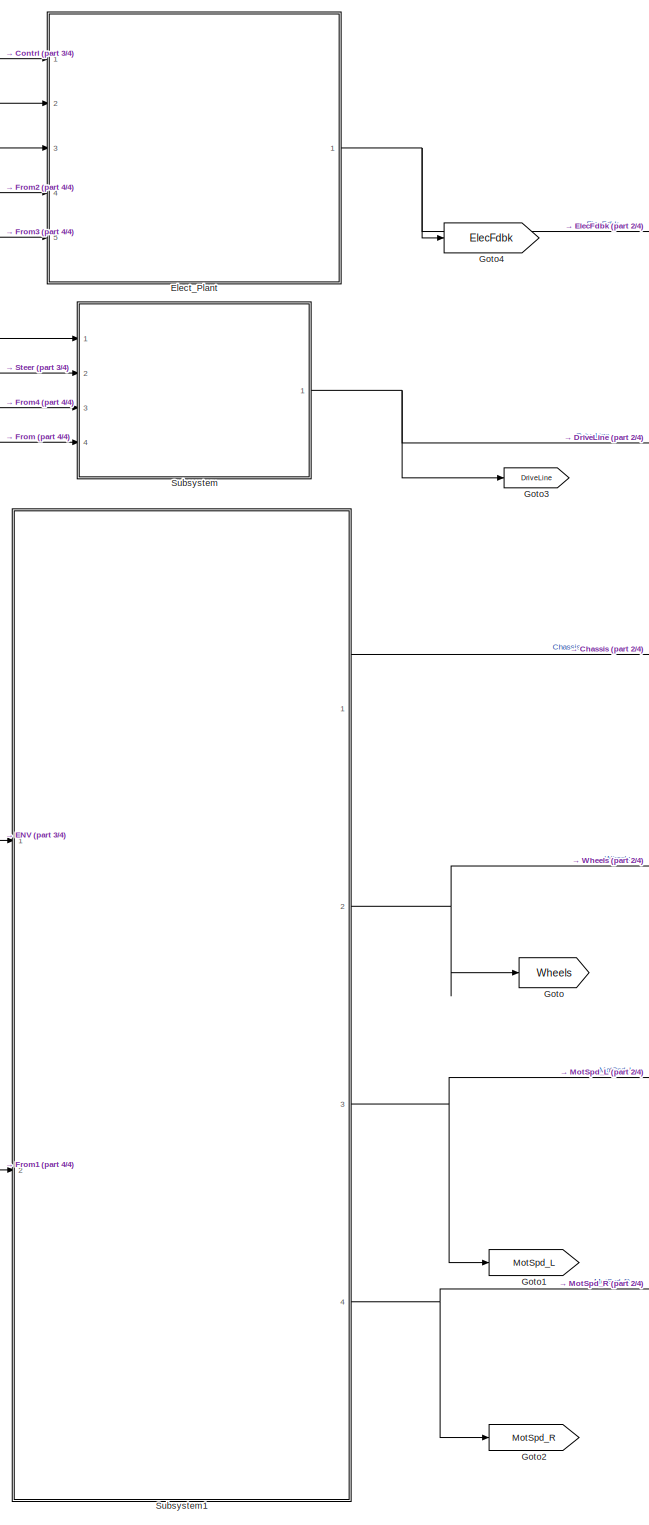
[diagram: root canvas - part 1/4, center side, full height]
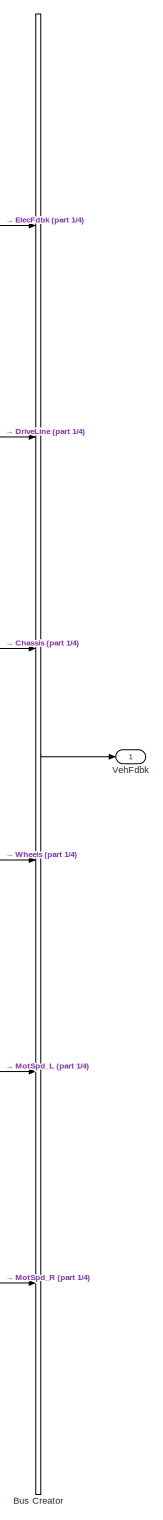
[diagram: root canvas - part 2/4, right side, full height]
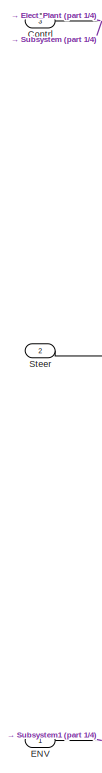
[diagram: root canvas - part 3/4, top left region]
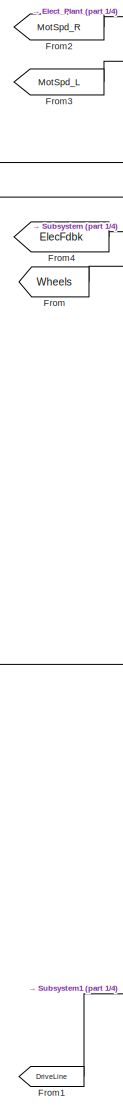
[diagram: root canvas - part 4/4, middle left region]
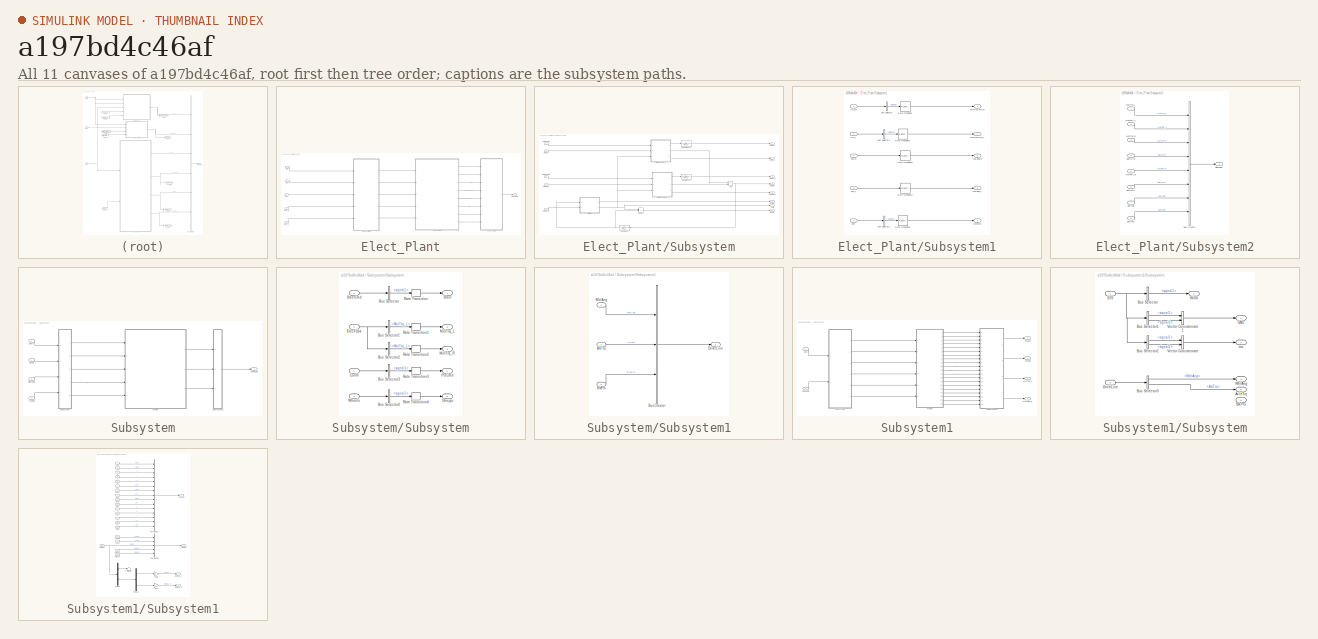
[diagram: thumbnail index - all 11 canvases of the model, root first then tree order]
MODEL slx_a197bd4c46af
KIND model
CONFIG AbsTol = auto
CONFIG EnableMultiTasking = off
CONFIG FixedStep = auto
CONFIG MaxStep = auto
CONFIG MinStep = auto
CONFIG RelTol = 1e-3
CONFIG SampleTimeConstraint = Unconstrained
CONFIG Solver = VariableStepAuto
CONFIG SolverName = VariableStepAuto
CONFIG StartTime = 0.0
CONFIG StopTime = 10.0
WORKSPACE source: mxarray member
WORKSPACE VEH: object (value not decoded)
BLOCK [BusCreator] Bus Creator
  DisplayOption = bar
  InheritFromInputs = on
  Inputs = 6
  Ports = [6, 1]
BLOCK [Inport] Contrl
  Port = 3
BLOCK [Inport] ENV
BLOCK [SubSystem] Elect_Plant
  Ports = [5, 1]
  RequestExecContextInheritance = off
BLOCK [Inport] Elect_Plant/Ctrl_L
  Port = 2
BLOCK [Inport] Elect_Plant/Ctrl_R
BLOCK [Outport] Elect_Plant/ElecFdbk
BLOCK [Inport] Elect_Plant/Env
  Port = 3
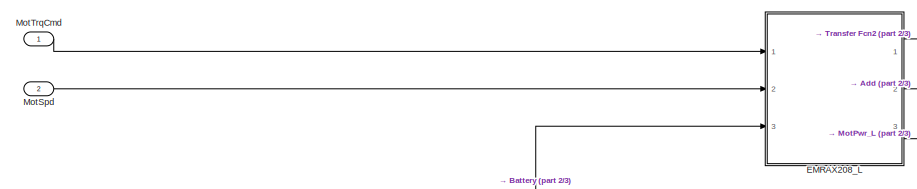
[diagram: Elect_Plant/Subsystem - part 1/3, top left region]
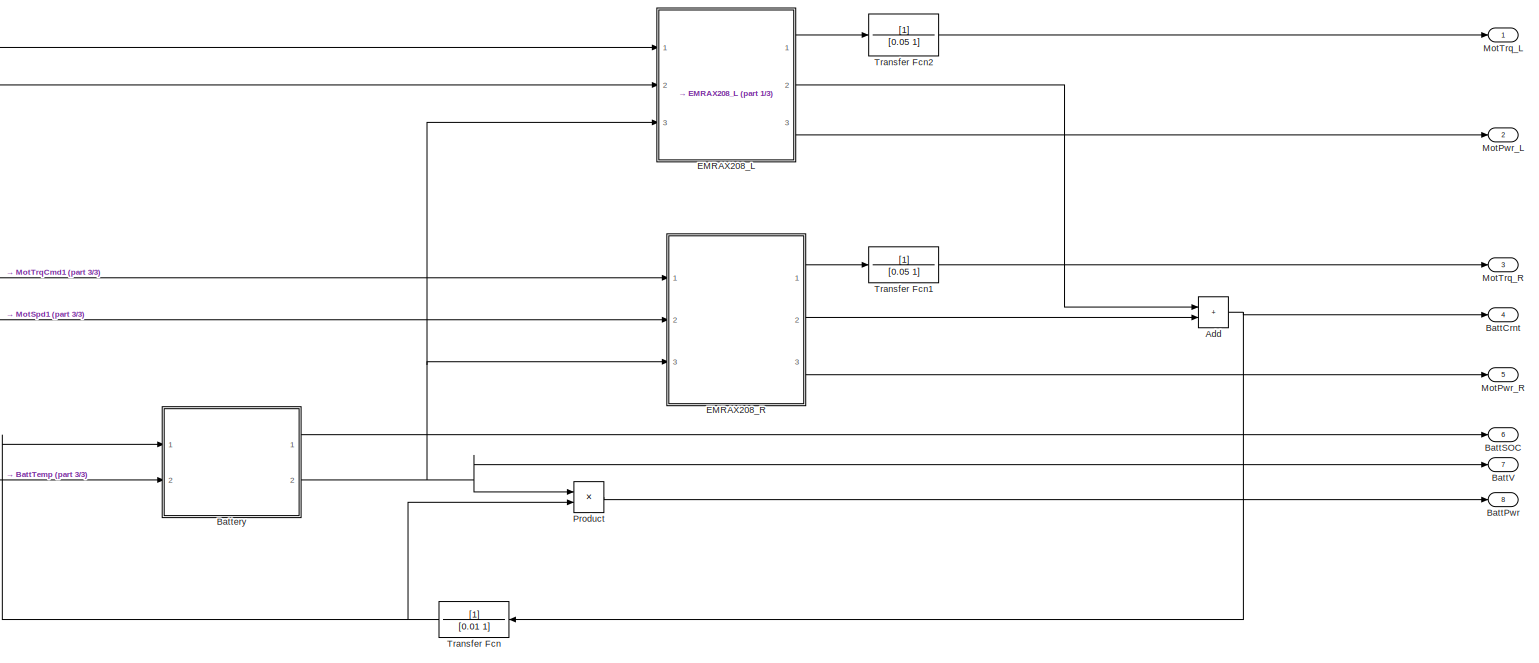
[diagram: Elect_Plant/Subsystem - part 2/3, most of the canvas]
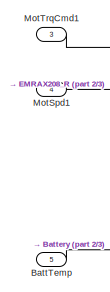
[diagram: Elect_Plant/Subsystem - part 3/3, middle left region]
BLOCK [SubSystem] Elect_Plant/Subsystem
  Ports = [5, 8]
  RequestExecContextInheritance = off
BLOCK [Sum] Elect_Plant/Subsystem/Add
  IconShape = rectangular
  Ports = [2, 1]
BLOCK [Outport] Elect_Plant/Subsystem/BattCrnt
  Port = 4
BLOCK [Outport] Elect_Plant/Subsystem/BattPwr
  Port = 8
BLOCK [Outport] Elect_Plant/Subsystem/BattSOC
  Port = 6
BLOCK [Inport] Elect_Plant/Subsystem/BattTemp
  Port = 5
BLOCK [Outport] Elect_Plant/Subsystem/BattV
  Port = 7
BLOCK [ModelReference] Elect_Plant/Subsystem/Battery
  ModelNameDialog = Battery.slx
  ModelReferenceVersion = 1.1
  Ports = [2, 2]
BLOCK [ModelReference] Elect_Plant/Subsystem/EMRAX208_L
  ModelNameDialog = MotorController_Motor.slx
  ModelReferenceVersion = 1.1
  Ports = [3, 3]
BLOCK [ModelReference] Elect_Plant/Subsystem/EMRAX208_R
  ModelNameDialog = MotorController_Motor.slx
  ModelReferenceVersion = 1.1
  Ports = [3, 3]
BLOCK [Outport] Elect_Plant/Subsystem/MotPwr_L
  Port = 2
BLOCK [Outport] Elect_Plant/Subsystem/MotPwr_R
  Port = 5
BLOCK [Inport] Elect_Plant/Subsystem/MotSpd
  Port = 2
BLOCK [Inport] Elect_Plant/Subsystem/MotSpd1
  Port = 4
BLOCK [Inport] Elect_Plant/Subsystem/MotTrqCmd
BLOCK [Inport] Elect_Plant/Subsystem/MotTrqCmd1
  Port = 3
BLOCK [Outport] Elect_Plant/Subsystem/MotTrq_L
BLOCK [Outport] Elect_Plant/Subsystem/MotTrq_R
  Port = 3
BLOCK [Product] Elect_Plant/Subsystem/Product
  Ports = [2, 1]
BLOCK [TransferFcn] Elect_Plant/Subsystem/Transfer Fcn
  Denominator = [0.01 1]
  NameLocation = top
BLOCK [TransferFcn] Elect_Plant/Subsystem/Transfer Fcn1
  Denominator = [0.05 1]
BLOCK [TransferFcn] Elect_Plant/Subsystem/Transfer Fcn2
  Denominator = [0.05 1]
BLOCK [SubSystem] Elect_Plant/Subsystem1
  Ports = [5, 5]
  RequestExecContextInheritance = off
BLOCK [Outport] Elect_Plant/Subsystem1/AmbTmp
  Port = 3
BLOCK [BusSelector] Elect_Plant/Subsystem1/Bus Selector
  OutputSignals = signal1
  Ports = [1, 1]
BLOCK [BusSelector] Elect_Plant/Subsystem1/Bus Selector1
  OutputSignals = signal1
  Ports = [1, 1]
BLOCK [BusSelector] Elect_Plant/Subsystem1/Bus Selector2
  OutputSignals = signal1
  Ports = [1, 1]
BLOCK [Inport] Elect_Plant/Subsystem1/Ctrl_L
  Port = 2
BLOCK [Inport] Elect_Plant/Subsystem1/Ctrl_R
BLOCK [Inport] Elect_Plant/Subsystem1/Env
  Port = 3
BLOCK [Outport] Elect_Plant/Subsystem1/MotSpd_L
  Port = 5
BLOCK [Outport] Elect_Plant/Subsystem1/MotSpd_R
  Port = 4
BLOCK [Outport] Elect_Plant/Subsystem1/MotTrqCmd_L
  Port = 2
BLOCK [Outport] Elect_Plant/Subsystem1/MotTrqCmd_R
BLOCK [RateTransition] Elect_Plant/Subsystem1/Rate Transition
  Deterministic = off
BLOCK [RateTransition] Elect_Plant/Subsystem1/Rate Transition1
BLOCK [RateTransition] Elect_Plant/Subsystem1/Rate Transition2
BLOCK [RateTransition] Elect_Plant/Subsystem1/Rate Transition3
BLOCK [RateTransition] Elect_Plant/Subsystem1/Rate Transition4
BLOCK [Inport] Elect_Plant/Subsystem1/Veh_L
  Port = 5
BLOCK [Inport] Elect_Plant/Subsystem1/Veh_R
  Port = 4
BLOCK [SubSystem] Elect_Plant/Subsystem2
  Ports = [8, 1]
  RequestExecContextInheritance = off
BLOCK [Inport] Elect_Plant/Subsystem2/BattCrnt
  Port = 4
BLOCK [Inport] Elect_Plant/Subsystem2/BattPwr
  Port = 8
BLOCK [Inport] Elect_Plant/Subsystem2/BattSOC
  Port = 6
BLOCK [Inport] Elect_Plant/Subsystem2/BattVolt
  Port = 7
BLOCK [BusCreator] Elect_Plant/Subsystem2/Bus Creator
  DisplayOption = bar
  InheritFromInputs = on
  Inputs = 8
  Ports = [8, 1]
BLOCK [Outport] Elect_Plant/Subsystem2/ElecFdbk
BLOCK [Inport] Elect_Plant/Subsystem2/MotPwr_L
  Port = 2
BLOCK [Inport] Elect_Plant/Subsystem2/MotPwr_R
  Port = 5
BLOCK [Inport] Elect_Plant/Subsystem2/MotTrq_L
BLOCK [Inport] Elect_Plant/Subsystem2/MotTrq_R
  Port = 3
BLOCK [Inport] Elect_Plant/Veh_L
  Port = 5
BLOCK [Inport] Elect_Plant/Veh_R
  Port = 4
BLOCK [From] From
  GotoTag = Wheels
BLOCK [From] From1
  GotoTag = DriveLine
BLOCK [From] From2
  GotoTag = MotSpd_R
BLOCK [From] From3
  GotoTag = MotSpd_L
BLOCK [From] From4
  GotoTag = ElecFdbk
BLOCK [Goto] Goto
  GotoTag = Wheels
BLOCK [Goto] Goto1
  GotoTag = MotSpd_L
BLOCK [Goto] Goto2
  GotoTag = MotSpd_R
BLOCK [Goto] Goto3
  GotoTag = DriveLine
BLOCK [Goto] Goto4
  GotoTag = ElecFdbk
BLOCK [Inport] Steer
  Port = 2
BLOCK [SubSystem] Subsystem
  Ports = [4, 1]
  RequestExecContextInheritance = off
BLOCK [Inport] Subsystem/Contrl
BLOCK [Outport] Subsystem/DriveLine
BLOCK [Inport] Subsystem/ElecFdbk
  Port = 3
BLOCK [ModelReference] Subsystem/Model
  ModelNameDialog = Driveline.slx
  ModelReferenceVersion = 1.211
  Ports = [5, 3]
BLOCK [Inport] Subsystem/Steer
  Port = 2
BLOCK [SubSystem] Subsystem/Subsystem
  Ports = [4, 5]
  RequestExecContextInheritance = off
BLOCK [BusSelector] Subsystem/Subsystem/Bus Selector
  OutputSignals = signal1
  Ports = [1, 1]
BLOCK [BusSelector] Subsystem/Subsystem/Bus Selector1
  OutputSignals = MotTrq_L
  Ports = [1, 1]
BLOCK [BusSelector] Subsystem/Subsystem/Bus Selector2
  OutputSignals = MotTrq_L
  Ports = [1, 1]
BLOCK [BusSelector] Subsystem/Subsystem/Bus Selector3
  OutputSignals = signal1
  Ports = [1, 1]
BLOCK [BusSelector] Subsystem/Subsystem/Bus Selector4
  OutputSignals = signal1
  Ports = [1, 1]
BLOCK [Inport] Subsystem/Subsystem/Contrl
BLOCK [Inport] Subsystem/Subsystem/ElecFdbk
  Port = 3
BLOCK [Outport] Subsystem/Subsystem/MotTrq_L
  Port = 2
BLOCK [Outport] Subsystem/Subsystem/MotTrq_R
  Port = 3
BLOCK [Outport] Subsystem/Subsystem/Omega
  Port = 5
BLOCK [Outport] Subsystem/Subsystem/PrsCmd
  Port = 4
BLOCK [RateTransition] Subsystem/Subsystem/Rate Transition
BLOCK [RateTransition] Subsystem/Subsystem/Rate Transition1
BLOCK [RateTransition] Subsystem/Subsystem/Rate Transition2
BLOCK [RateTransition] Subsystem/Subsystem/Rate Transition3
BLOCK [RateTransition] Subsystem/Subsystem/Rate Transition4
BLOCK [Outport] Subsystem/Subsystem/Steer
BLOCK [Inport] Subsystem/Subsystem/SteerCmd
  Port = 2
BLOCK [Inport] Subsystem/Subsystem/Wheels
  Port = 4
BLOCK [SubSystem] Subsystem/Subsystem1
  Ports = [3, 1]
  RequestExecContextInheritance = off
BLOCK [Inport] Subsystem/Subsystem1/AxlTrq
  Port = 2
BLOCK [Inport] Subsystem/Subsystem1/BrkPrs
  Port = 3
BLOCK [BusCreator] Subsystem/Subsystem1/Bus Creator
  DisplayOption = bar
  InheritFromInputs = on
  Inputs = 3
  Ports = [3, 1]
BLOCK [Outport] Subsystem/Subsystem1/DriverLine
BLOCK [Inport] Subsystem/Subsystem1/WhlAng
BLOCK [Inport] Subsystem/Wheels
  Port = 4
BLOCK [SubSystem] Subsystem1
  Ports = [2, 4]
  RequestExecContextInheritance = off
BLOCK [Outport] Subsystem1/Chassis
BLOCK [Inport] Subsystem1/DriveLine
  Port = 2
BLOCK [Inport] Subsystem1/Env
BLOCK [ModelReference] Subsystem1/Model
  ModelNameDialog = PassVeh7DOF.slx
  ModelReferenceVersion = 1.128
  Ports = [6, 20]
BLOCK [Outport] Subsystem1/MotSpd_L
  Port = 3
BLOCK [Outport] Subsystem1/MotSpd_R
  Port = 4
BLOCK [SubSystem] Subsystem1/Subsystem
  Ports = [2, 6]
  RequestExecContextInheritance = off
BLOCK [Outport] Subsystem1/Subsystem/AxleTrq
  Port = 5
BLOCK [Outport] Subsystem1/Subsystem/BrkPrs
  Port = 6
BLOCK [BusSelector] Subsystem1/Subsystem/Bus Selector
  OutputSignals = signal1
  Ports = [1, 1]
BLOCK [BusSelector] Subsystem1/Subsystem/Bus Selector1
  OutputSignals = signal1,signal2
  Ports = [1, 2]
BLOCK [BusSelector] Subsystem1/Subsystem/Bus Selector2
  OutputSignals = signal1,signal2
  Ports = [1, 2]
BLOCK [BusSelector] Subsystem1/Subsystem/Bus Selector3
  OutputSignals = WhlAng,AxlTrq
  Ports = [1, 2]
BLOCK [Inport] Subsystem1/Subsystem/DriveLine
  Port = 2
BLOCK [Inport] Subsystem1/Subsystem/Env
BLOCK [Outport] Subsystem1/Subsystem/GND
  Port = 2
BLOCK [Concatenate] Subsystem1/Subsystem/Vector Concatenate
  Ports = [2, 1]
BLOCK [Concatenate] Subsystem1/Subsystem/Vector Concatenate1
  Ports = [2, 1]
BLOCK [Outport] Subsystem1/Subsystem/WhlAng
  Port = 4
BLOCK [Outport] Subsystem1/Subsystem/Wind
BLOCK [Outport] Subsystem1/Subsystem/mu
  Port = 3
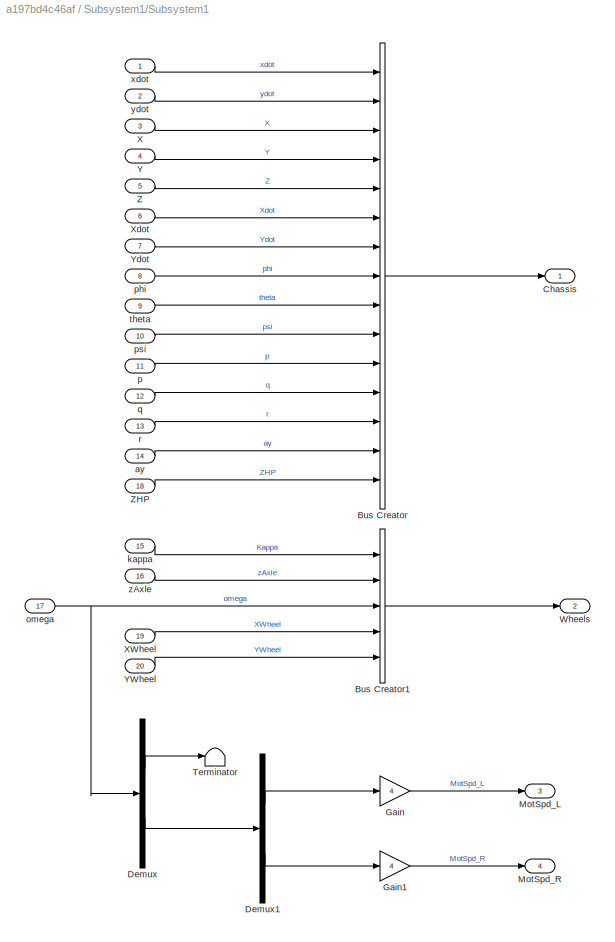
BLOCK [SubSystem] Subsystem1/Subsystem1
  Ports = [20, 4]
  RequestExecContextInheritance = off
BLOCK [BusCreator] Subsystem1/Subsystem1/Bus Creator
  DisplayOption = bar
  InheritFromInputs = on
  Inputs = 15
  Ports = [15, 1]
BLOCK [BusCreator] Subsystem1/Subsystem1/Bus Creator1
  DisplayOption = bar
  InheritFromInputs = on
  Inputs = 5
  Ports = [5, 1]
BLOCK [Outport] Subsystem1/Subsystem1/Chassis
BLOCK [Demux] Subsystem1/Subsystem1/Demux
  Outputs = 2
  Ports = [1, 2]
BLOCK [Demux] Subsystem1/Subsystem1/Demux1
  Outputs = 2
  Ports = [1, 2]
BLOCK [Gain] Subsystem1/Subsystem1/Gain
  Gain = 4
BLOCK [Gain] Subsystem1/Subsystem1/Gain1
  Gain = 4
BLOCK [Outport] Subsystem1/Subsystem1/MotSpd_L
  Port = 3
BLOCK [Outport] Subsystem1/Subsystem1/MotSpd_R
  Port = 4
BLOCK [Terminator] Subsystem1/Subsystem1/Terminator
BLOCK [Outport] Subsystem1/Subsystem1/Wheels
  Port = 2
BLOCK [Inport] Subsystem1/Subsystem1/X
  Port = 3
BLOCK [Inport] Subsystem1/Subsystem1/XWheel
  Port = 19
BLOCK [Inport] Subsystem1/Subsystem1/Xdot
  Port = 6
BLOCK [Inport] Subsystem1/Subsystem1/Y
  Port = 4
BLOCK [Inport] Subsystem1/Subsystem1/YWheel
  Port = 20
BLOCK [Inport] Subsystem1/Subsystem1/Ydot
  Port = 7
BLOCK [Inport] Subsystem1/Subsystem1/Z
  Port = 5
BLOCK [Inport] Subsystem1/Subsystem1/ZHP
  Port = 18
BLOCK [Inport] Subsystem1/Subsystem1/ay
  Port = 14
BLOCK [Inport] Subsystem1/Subsystem1/kappa
  Port = 15
BLOCK [Inport] Subsystem1/Subsystem1/omega
  Port = 17
BLOCK [Inport] Subsystem1/Subsystem1/p
  Port = 11
BLOCK [Inport] Subsystem1/Subsystem1/phi
  Port = 8
BLOCK [Inport] Subsystem1/Subsystem1/psi
  Port = 10
BLOCK [Inport] Subsystem1/Subsystem1/q
  Port = 12
BLOCK [Inport] Subsystem1/Subsystem1/r
  Port = 13
BLOCK [Inport] Subsystem1/Subsystem1/theta
  Port = 9
BLOCK [Inport] Subsystem1/Subsystem1/xdot
BLOCK [Inport] Subsystem1/Subsystem1/ydot
  Port = 2
BLOCK [Inport] Subsystem1/Subsystem1/zAxle
  Port = 16
BLOCK [Outport] Subsystem1/Wheels
  Port = 2
BLOCK [Outport] VehFdbk
  SignalName = VehFdbk
LINE Bus Creator:1 -> VehFdbk:1
NET Contrl:1 -> Elect_Plant:1, Elect_Plant:2, Subsystem:1
NET ENV:1 -> Elect_Plant:3, Subsystem1:1
LINE Elect_Plant/Ctrl_L:1 -> Elect_Plant/Subsystem1:2
LINE Elect_Plant/Ctrl_R:1 -> Elect_Plant/Subsystem1:1
LINE Elect_Plant/Env:1 -> Elect_Plant/Subsystem1:3
NET Elect_Plant/Subsystem/Add:1 -> Elect_Plant/Subsystem/BattCrnt:1, Elect_Plant/Subsystem/Transfer Fcn:1
LINE Elect_Plant/Subsystem/BattTemp:1 -> Elect_Plant/Subsystem/Battery:2
LINE Elect_Plant/Subsystem/Battery:1 -> Elect_Plant/Subsystem/BattSOC:1
NET Elect_Plant/Subsystem/Battery:2 -> Elect_Plant/Subsystem/BattV:1, Elect_Plant/Subsystem/EMRAX208_L:3, Elect_Plant/Subsystem/EMRAX208_R:3, Elect_Plant/Subsystem/Product:1
LINE Elect_Plant/Subsystem/EMRAX208_L:1 -> Elect_Plant/Subsystem/Transfer Fcn2:1
LINE Elect_Plant/Subsystem/EMRAX208_L:2 -> Elect_Plant/Subsystem/Add:1
LINE Elect_Plant/Subsystem/EMRAX208_L:3 -> Elect_Plant/Subsystem/MotPwr_L:1
LINE Elect_Plant/Subsystem/EMRAX208_R:1 -> Elect_Plant/Subsystem/Transfer Fcn1:1
LINE Elect_Plant/Subsystem/EMRAX208_R:2 -> Elect_Plant/Subsystem/Add:2
LINE Elect_Plant/Subsystem/EMRAX208_R:3 -> Elect_Plant/Subsystem/MotPwr_R:1
LINE Elect_Plant/Subsystem/MotSpd1:1 -> Elect_Plant/Subsystem/EMRAX208_R:2
LINE Elect_Plant/Subsystem/MotSpd:1 -> Elect_Plant/Subsystem/EMRAX208_L:2
LINE Elect_Plant/Subsystem/MotTrqCmd1:1 -> Elect_Plant/Subsystem/EMRAX208_R:1
LINE Elect_Plant/Subsystem/MotTrqCmd:1 -> Elect_Plant/Subsystem/EMRAX208_L:1
LINE Elect_Plant/Subsystem/Product:1 -> Elect_Plant/Subsystem/BattPwr:1
LINE Elect_Plant/Subsystem/Transfer Fcn1:1 -> Elect_Plant/Subsystem/MotTrq_R:1
LINE Elect_Plant/Subsystem/Transfer Fcn2:1 -> Elect_Plant/Subsystem/MotTrq_L:1
NET Elect_Plant/Subsystem/Transfer Fcn:1 -> Elect_Plant/Subsystem/Battery:1, Elect_Plant/Subsystem/Product:2
LINE Elect_Plant/Subsystem1/Bus Selector1:1 -> Elect_Plant/Subsystem1/Rate Transition1:1
LINE Elect_Plant/Subsystem1/Bus Selector2:1 -> Elect_Plant/Subsystem1/Rate Transition2:1
LINE Elect_Plant/Subsystem1/Bus Selector:1 -> Elect_Plant/Subsystem1/Rate Transition:1
LINE Elect_Plant/Subsystem1/Ctrl_L:1 -> Elect_Plant/Subsystem1/Bus Selector1:1
LINE Elect_Plant/Subsystem1/Ctrl_R:1 -> Elect_Plant/Subsystem1/Bus Selector:1
LINE Elect_Plant/Subsystem1/Env:1 -> Elect_Plant/Subsystem1/Bus Selector2:1
LINE Elect_Plant/Subsystem1/Rate Transition1:1 -> Elect_Plant/Subsystem1/MotTrqCmd_L:1
LINE Elect_Plant/Subsystem1/Rate Transition2:1 -> Elect_Plant/Subsystem1/AmbTmp:1
LINE Elect_Plant/Subsystem1/Rate Transition3:1 -> Elect_Plant/Subsystem1/MotSpd_R:1
LINE Elect_Plant/Subsystem1/Rate Transition4:1 -> Elect_Plant/Subsystem1/MotSpd_L:1
LINE Elect_Plant/Subsystem1/Rate Transition:1 -> Elect_Plant/Subsystem1/MotTrqCmd_R:1
LINE Elect_Plant/Subsystem1/Veh_L:1 -> Elect_Plant/Subsystem1/Rate Transition4:1
LINE Elect_Plant/Subsystem1/Veh_R:1 -> Elect_Plant/Subsystem1/Rate Transition3:1
LINE Elect_Plant/Subsystem1:1 -> Elect_Plant/Subsystem:1
LINE Elect_Plant/Subsystem1:2 -> Elect_Plant/Subsystem:2
LINE Elect_Plant/Subsystem1:3 -> Elect_Plant/Subsystem:3
LINE Elect_Plant/Subsystem1:4 -> Elect_Plant/Subsystem:4
LINE Elect_Plant/Subsystem1:5 -> Elect_Plant/Subsystem:5
LINE Elect_Plant/Subsystem2/BattCrnt:1 -> Elect_Plant/Subsystem2/Bus Creator:4
LINE Elect_Plant/Subsystem2/BattPwr:1 -> Elect_Plant/Subsystem2/Bus Creator:8
LINE Elect_Plant/Subsystem2/BattSOC:1 -> Elect_Plant/Subsystem2/Bus Creator:6
LINE Elect_Plant/Subsystem2/BattVolt:1 -> Elect_Plant/Subsystem2/Bus Creator:7
LINE Elect_Plant/Subsystem2/Bus Creator:1 -> Elect_Plant/Subsystem2/ElecFdbk:1
LINE Elect_Plant/Subsystem2/MotPwr_L:1 -> Elect_Plant/Subsystem2/Bus Creator:2
LINE Elect_Plant/Subsystem2/MotPwr_R:1 -> Elect_Plant/Subsystem2/Bus Creator:5
LINE Elect_Plant/Subsystem2/MotTrq_L:1 -> Elect_Plant/Subsystem2/Bus Creator:1
LINE Elect_Plant/Subsystem2/MotTrq_R:1 -> Elect_Plant/Subsystem2/Bus Creator:3
LINE Elect_Plant/Subsystem2:1 -> Elect_Plant/ElecFdbk:1
LINE Elect_Plant/Subsystem:1 -> Elect_Plant/Subsystem2:1
LINE Elect_Plant/Subsystem:2 -> Elect_Plant/Subsystem2:2
LINE Elect_Plant/Subsystem:3 -> Elect_Plant/Subsystem2:3
LINE Elect_Plant/Subsystem:4 -> Elect_Plant/Subsystem2:4
LINE Elect_Plant/Subsystem:5 -> Elect_Plant/Subsystem2:5
LINE Elect_Plant/Subsystem:6 -> Elect_Plant/Subsystem2:6
LINE Elect_Plant/Subsystem:7 -> Elect_Plant/Subsystem2:7
LINE Elect_Plant/Subsystem:8 -> Elect_Plant/Subsystem2:8
LINE Elect_Plant/Veh_L:1 -> Elect_Plant/Subsystem1:5
LINE Elect_Plant/Veh_R:1 -> Elect_Plant/Subsystem1:4
NET Elect_Plant:1 -> Bus Creator:1, Goto4:1
LINE From1:1 -> Subsystem1:2
LINE From2:1 -> Elect_Plant:4
LINE From3:1 -> Elect_Plant:5
LINE From4:1 -> Subsystem:3
LINE From:1 -> Subsystem:4
LINE Steer:1 -> Subsystem:2
LINE Subsystem/Contrl:1 -> Subsystem/Subsystem:1
LINE Subsystem/ElecFdbk:1 -> Subsystem/Subsystem:3
LINE Subsystem/Model:1 -> Subsystem/Subsystem1:1
LINE Subsystem/Model:2 -> Subsystem/Subsystem1:2
LINE Subsystem/Model:3 -> Subsystem/Subsystem1:3
LINE Subsystem/Steer:1 -> Subsystem/Subsystem:2
LINE Subsystem/Subsystem/Bus Selector1:1 -> Subsystem/Subsystem/Rate Transition1:1
LINE Subsystem/Subsystem/Bus Selector2:1 -> Subsystem/Subsystem/Rate Transition2:1
LINE Subsystem/Subsystem/Bus Selector3:1 -> Subsystem/Subsystem/Rate Transition3:1
LINE Subsystem/Subsystem/Bus Selector4:1 -> Subsystem/Subsystem/Rate Transition4:1
LINE Subsystem/Subsystem/Bus Selector:1 -> Subsystem/Subsystem/Rate Transition:1
LINE Subsystem/Subsystem/Contrl:1 -> Subsystem/Subsystem/Bus Selector3:1
NET Subsystem/Subsystem/ElecFdbk:1 -> Subsystem/Subsystem/Bus Selector1:1, Subsystem/Subsystem/Bus Selector2:1
LINE Subsystem/Subsystem/Rate Transition1:1 -> Subsystem/Subsystem/MotTrq_L:1
LINE Subsystem/Subsystem/Rate Transition2:1 -> Subsystem/Subsystem/MotTrq_R:1
LINE Subsystem/Subsystem/Rate Transition3:1 -> Subsystem/Subsystem/PrsCmd:1
LINE Subsystem/Subsystem/Rate Transition4:1 -> Subsystem/Subsystem/Omega:1
LINE Subsystem/Subsystem/Rate Transition:1 -> Subsystem/Subsystem/Steer:1
LINE Subsystem/Subsystem/SteerCmd:1 -> Subsystem/Subsystem/Bus Selector:1
LINE Subsystem/Subsystem/Wheels:1 -> Subsystem/Subsystem/Bus Selector4:1
LINE Subsystem/Subsystem1/AxlTrq:1 -> Subsystem/Subsystem1/Bus Creator:2
LINE Subsystem/Subsystem1/BrkPrs:1 -> Subsystem/Subsystem1/Bus Creator:3
LINE Subsystem/Subsystem1/Bus Creator:1 -> Subsystem/Subsystem1/DriverLine:1
LINE Subsystem/Subsystem1/WhlAng:1 -> Subsystem/Subsystem1/Bus Creator:1
LINE Subsystem/Subsystem1:1 -> Subsystem/DriveLine:1
LINE Subsystem/Subsystem:1 -> Subsystem/Model:1
LINE Subsystem/Subsystem:2 -> Subsystem/Model:2
LINE Subsystem/Subsystem:3 -> Subsystem/Model:3
LINE Subsystem/Subsystem:4 -> Subsystem/Model:4
LINE Subsystem/Subsystem:5 -> Subsystem/Model:5
LINE Subsystem/Wheels:1 -> Subsystem/Subsystem:4
LINE Subsystem1/DriveLine:1 -> Subsystem1/Subsystem:2
LINE Subsystem1/Env:1 -> Subsystem1/Subsystem:1
LINE Subsystem1/Model:1 -> Subsystem1/Subsystem1:1
LINE Subsystem1/Model:10 -> Subsystem1/Subsystem1:10
LINE Subsystem1/Model:11 -> Subsystem1/Subsystem1:11
LINE Subsystem1/Model:12 -> Subsystem1/Subsystem1:12
LINE Subsystem1/Model:13 -> Subsystem1/Subsystem1:13
LINE Subsystem1/Model:14 -> Subsystem1/Subsystem1:14
LINE Subsystem1/Model:15 -> Subsystem1/Subsystem1:15
LINE Subsystem1/Model:16 -> Subsystem1/Subsystem1:16
LINE Subsystem1/Model:17 -> Subsystem1/Subsystem1:17
LINE Subsystem1/Model:18 -> Subsystem1/Subsystem1:18
LINE Subsystem1/Model:19 -> Subsystem1/Subsystem1:19
LINE Subsystem1/Model:2 -> Subsystem1/Subsystem1:2
LINE Subsystem1/Model:20 -> Subsystem1/Subsystem1:20
LINE Subsystem1/Model:3 -> Subsystem1/Subsystem1:3
LINE Subsystem1/Model:4 -> Subsystem1/Subsystem1:4
LINE Subsystem1/Model:5 -> Subsystem1/Subsystem1:5
LINE Subsystem1/Model:6 -> Subsystem1/Subsystem1:6
LINE Subsystem1/Model:7 -> Subsystem1/Subsystem1:7
LINE Subsystem1/Model:8 -> Subsystem1/Subsystem1:8
LINE Subsystem1/Model:9 -> Subsystem1/Subsystem1:9
LINE Subsystem1/Subsystem/Bus Selector1:1 -> Subsystem1/Subsystem/Vector Concatenate1:1
LINE Subsystem1/Subsystem/Bus Selector1:2 -> Subsystem1/Subsystem/Vector Concatenate1:2
LINE Subsystem1/Subsystem/Bus Selector2:1 -> Subsystem1/Subsystem/Vector Concatenate:1
LINE Subsystem1/Subsystem/Bus Selector2:2 -> Subsystem1/Subsystem/Vector Concatenate:2
LINE Subsystem1/Subsystem/Bus Selector3:1 -> Subsystem1/Subsystem/WhlAng:1
LINE Subsystem1/Subsystem/Bus Selector3:2 -> Subsystem1/Subsystem/AxleTrq:1
LINE Subsystem1/Subsystem/Bus Selector:1 -> Subsystem1/Subsystem/Wind:1
LINE Subsystem1/Subsystem/DriveLine:1 -> Subsystem1/Subsystem/Bus Selector3:1
NET Subsystem1/Subsystem/Env:1 -> Subsystem1/Subsystem/Bus Selector1:1, Subsystem1/Subsystem/Bus Selector2:1, Subsystem1/Subsystem/Bus Selector:1
LINE Subsystem1/Subsystem/Vector Concatenate1:1 -> Subsystem1/Subsystem/GND:1
LINE Subsystem1/Subsystem/Vector Concatenate:1 -> Subsystem1/Subsystem/mu:1
LINE Subsystem1/Subsystem1/Bus Creator1:1 -> Subsystem1/Subsystem1/Wheels:1
LINE Subsystem1/Subsystem1/Bus Creator:1 -> Subsystem1/Subsystem1/Chassis:1
LINE Subsystem1/Subsystem1/Demux1:1 -> Subsystem1/Subsystem1/Gain:1
LINE Subsystem1/Subsystem1/Demux1:2 -> Subsystem1/Subsystem1/Gain1:1
LINE Subsystem1/Subsystem1/Demux:1 -> Subsystem1/Subsystem1/Terminator:1
LINE Subsystem1/Subsystem1/Demux:2 -> Subsystem1/Subsystem1/Demux1:1
LINE Subsystem1/Subsystem1/Gain1:1 -> Subsystem1/Subsystem1/MotSpd_R:1
LINE Subsystem1/Subsystem1/Gain:1 -> Subsystem1/Subsystem1/MotSpd_L:1
LINE Subsystem1/Subsystem1/X:1 -> Subsystem1/Subsystem1/Bus Creator:3
LINE Subsystem1/Subsystem1/XWheel:1 -> Subsystem1/Subsystem1/Bus Creator1:4
LINE Subsystem1/Subsystem1/Xdot:1 -> Subsystem1/Subsystem1/Bus Creator:6
LINE Subsystem1/Subsystem1/Y:1 -> Subsystem1/Subsystem1/Bus Creator:4
LINE Subsystem1/Subsystem1/YWheel:1 -> Subsystem1/Subsystem1/Bus Creator1:5
LINE Subsystem1/Subsystem1/Ydot:1 -> Subsystem1/Subsystem1/Bus Creator:7
LINE Subsystem1/Subsystem1/Z:1 -> Subsystem1/Subsystem1/Bus Creator:5
LINE Subsystem1/Subsystem1/ZHP:1 -> Subsystem1/Subsystem1/Bus Creator:15
LINE Subsystem1/Subsystem1/ay:1 -> Subsystem1/Subsystem1/Bus Creator:14
LINE Subsystem1/Subsystem1/kappa:1 -> Subsystem1/Subsystem1/Bus Creator1:1
NET Subsystem1/Subsystem1/omega:1 -> Subsystem1/Subsystem1/Bus Creator1:3, Subsystem1/Subsystem1/Demux:1
LINE Subsystem1/Subsystem1/p:1 -> Subsystem1/Subsystem1/Bus Creator:11
LINE Subsystem1/Subsystem1/phi:1 -> Subsystem1/Subsystem1/Bus Creator:8
LINE Subsystem1/Subsystem1/psi:1 -> Subsystem1/Subsystem1/Bus Creator:10
LINE Subsystem1/Subsystem1/q:1 -> Subsystem1/Subsystem1/Bus Creator:12
LINE Subsystem1/Subsystem1/r:1 -> Subsystem1/Subsystem1/Bus Creator:13
LINE Subsystem1/Subsystem1/theta:1 -> Subsystem1/Subsystem1/Bus Creator:9
LINE Subsystem1/Subsystem1/xdot:1 -> Subsystem1/Subsystem1/Bus Creator:1
LINE Subsystem1/Subsystem1/ydot:1 -> Subsystem1/Subsystem1/Bus Creator:2
LINE Subsystem1/Subsystem1/zAxle:1 -> Subsystem1/Subsystem1/Bus Creator1:2
LINE Subsystem1/Subsystem1:1 -> Subsystem1/Chassis:1
LINE Subsystem1/Subsystem1:2 -> Subsystem1/Wheels:1
LINE Subsystem1/Subsystem1:3 -> Subsystem1/MotSpd_L:1
LINE Subsystem1/Subsystem1:4 -> Subsystem1/MotSpd_R:1
LINE Subsystem1/Subsystem:1 -> Subsystem1/Model:1
LINE Subsystem1/Subsystem:2 -> Subsystem1/Model:2
LINE Subsystem1/Subsystem:3 -> Subsystem1/Model:3
LINE Subsystem1/Subsystem:4 -> Subsystem1/Model:4
LINE Subsystem1/Subsystem:5 -> Subsystem1/Model:5
LINE Subsystem1/Subsystem:6 -> Subsystem1/Model:6
LINE Subsystem1:1 -> Bus Creator:3
NET Subsystem1:2 -> Bus Creator:4, Goto:1
NET Subsystem1:3 -> Bus Creator:5, Goto1:1
NET Subsystem1:4 -> Bus Creator:6, Goto2:1
NET Subsystem:1 -> Bus Creator:2, Goto3:1
note: NET lines group one-source signal fan-out (src -> all destinations, sorted); 1:1 wires keep LINE
